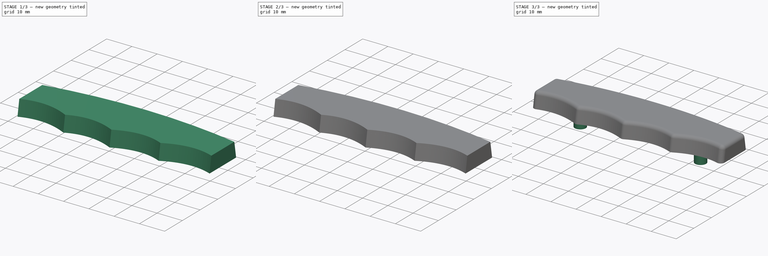
[diagram: build sequence overview — one tinted view per stage of 3, left to right]
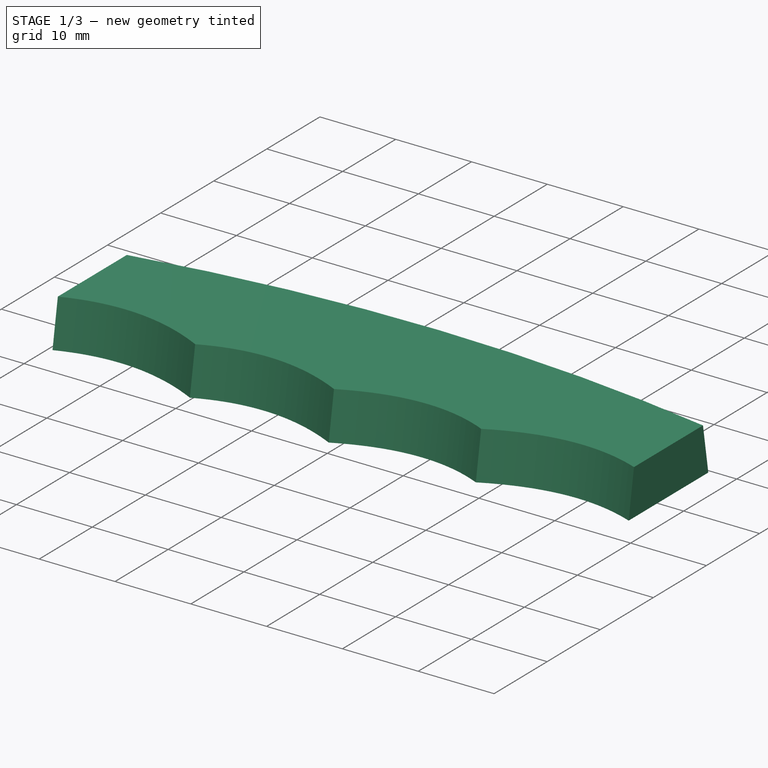
[diagram: stage 1 of 3 — iso view after this stage's code; geometry added in this stage tinted green]
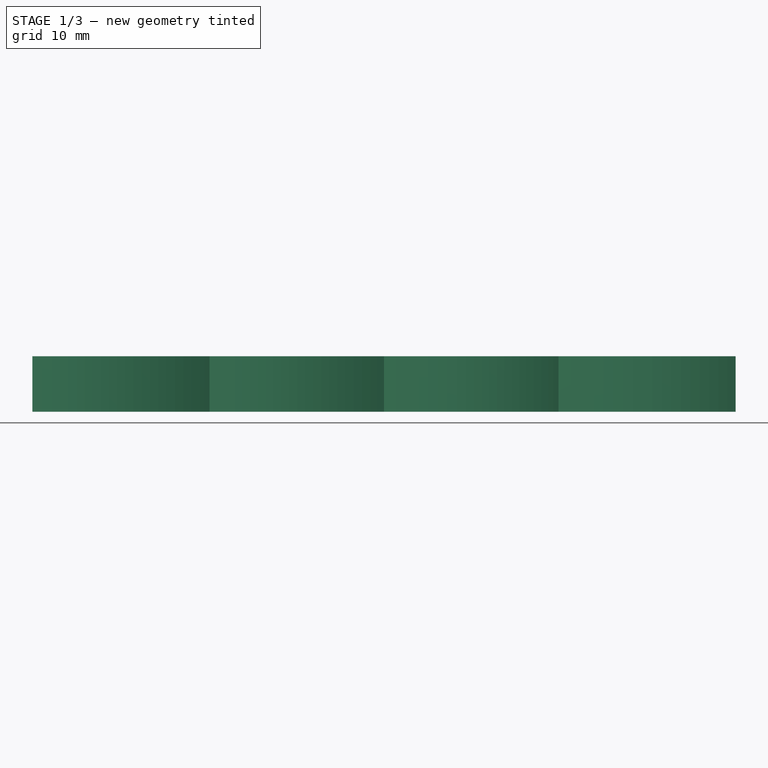
[diagram: stage 1 of 3 — front view after this stage's code; geometry added in this stage tinted green]
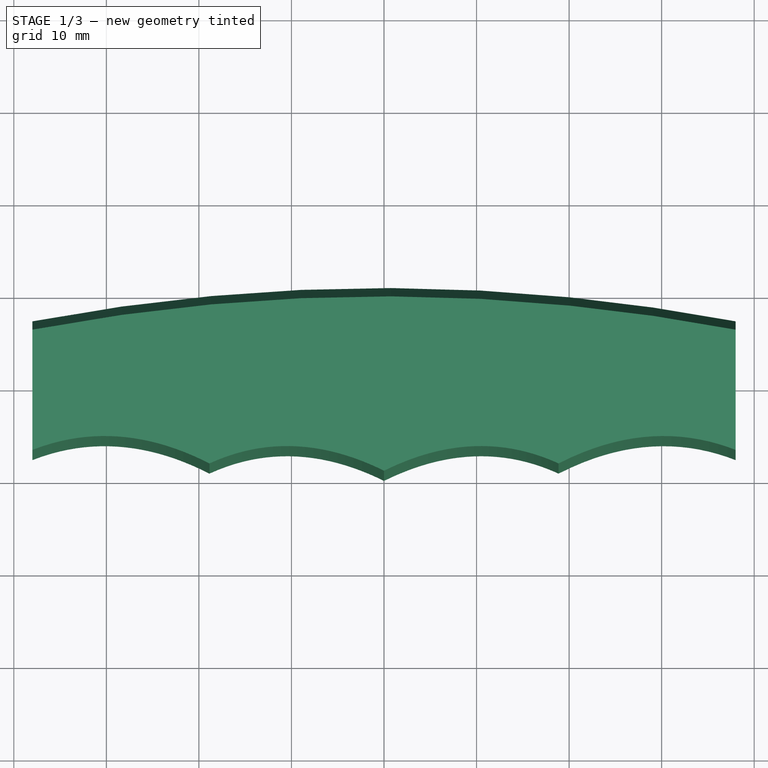
[diagram: stage 1 of 3 — top view after this stage's code; geometry added in this stage tinted green]
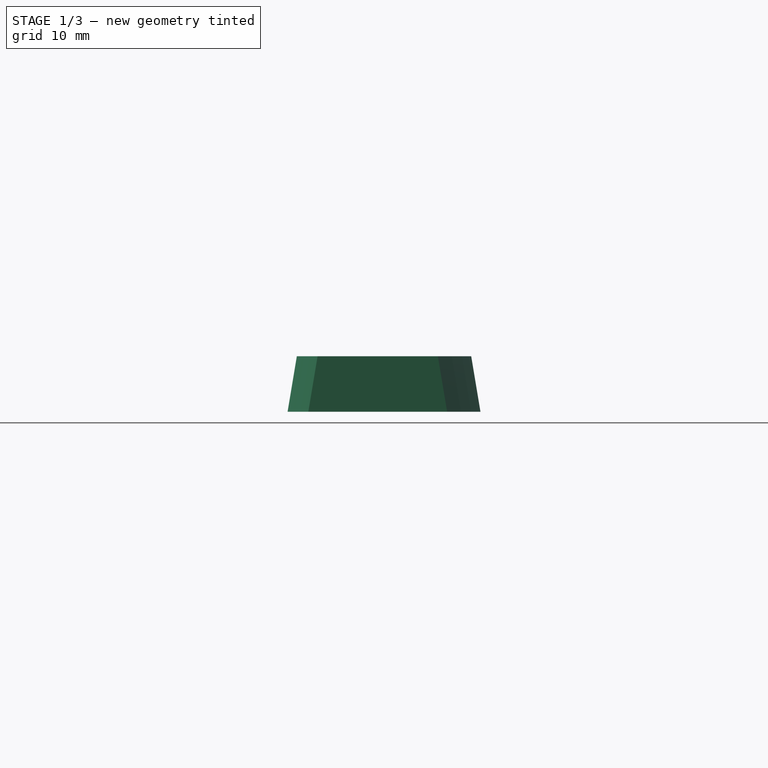
[diagram: stage 1 of 3 — right view after this stage's code; geometry added in this stage tinted green]
FCSTD DOCUMENT  (FreeCAD 1.1R)
Label: handle
License: All rights reserved
LicenseURL: https://en.wikipedia.org/wiki/All_rights_reserved
objects: Sketcher::SketchObject×6, App::Point×2, PartDesign::AdditiveLoft×2, PartDesign::Fillet×2, PartDesign::Body×2, Image::ImagePlane×1, PartDesign::Pocket×1, PartDesign::Pad×1
note: 32 computed .brp shape members not serialized (recipe doc carries the construction recipe); baked Part::Feature solids carry a one-line shape summary decoded from their .brp

FEATURE [Image::ImagePlane] _2025_10_30T14_15_14_075337338_01_00  label="2025-10-30T14:15:14,075337338+01:00"
  Placement = pos=(1.61,-21.71,0) rot=(0,0,1;0rad)
  XSize = 94.4865
  YSize = 80.1104
FEATURE [App::Point] Origin001
  Role = Origin
FEATURE [Sketcher::SketchObject] Sketch
  ArcFitTolerance = 1e-06
  AttachmentSupport = -> [Origin]
  ExternalTypes = [0]
  FullyConstrained = false
  MakeInternals = false
  MapMode = 5
  sketch-geometry (34):
    g0: LineSegment StartX=-38 StartY=7.5 StartZ=0 EndX=-38 EndY=-7.5 EndZ=0
    g1: LineSegment [constr] StartX=-38 StartY=-7.5 StartZ=0 EndX=38 EndY=-7.5 EndZ=0
    g2: LineSegment StartX=38 StartY=-7.5 StartZ=0 EndX=38 EndY=7.5 EndZ=0
    g3: LineSegment [constr] StartX=38 StartY=7.5 StartZ=0 EndX=-38 EndY=7.5 EndZ=0
    g4: Circle [constr] CenterX=-38 CenterY=7.5 CenterZ=0 NormalX=0 NormalY=0 NormalZ=1 AngleXU=0 Radius=1
    g5: Circle [constr] CenterX=0 CenterY=14.7 CenterZ=0 NormalX=0 NormalY=0 NormalZ=1 AngleXU=0 Radius=1
    g6: Circle [constr] CenterX=38 CenterY=7.5 CenterZ=0 NormalX=0 NormalY=0 NormalZ=1 AngleXU=0 Radius=1
    g7: BSplineCurve PolesCount=3 KnotsCount=2 Degree=2 IsPeriodic=0
    g8: GeomPoint [constr] X=-38 Y=7.5 Z=0
    g9: GeomPoint [constr] X=38 Y=7.5 Z=0
    g10: Circle [constr] CenterX=-38 CenterY=-7.5 CenterZ=0 NormalX=0 NormalY=0 NormalZ=1 AngleXU=0 Radius=1
    g11: Circle [constr] CenterX=-28.7713 CenterY=-3.886 CenterZ=0 NormalX=0 NormalY=0 NormalZ=1 AngleXU=0 Radius=1
    g12: Circle [constr] CenterX=-18.8619 CenterY=-8.959 CenterZ=0 NormalX=0 NormalY=0 NormalZ=1 AngleXU=0 Radius=1
    g13: BSplineCurve PolesCount=3 KnotsCount=2 Degree=2 IsPeriodic=0
    g14: GeomPoint [constr] X=-38 Y=-7.5 Z=0
    g15: GeomPoint [constr] X=-18.8619 Y=-8.959 Z=0
    g16: Circle [constr] CenterX=-18.8619 CenterY=-8.959 CenterZ=0 NormalX=0 NormalY=0 NormalZ=1 AngleXU=0 Radius=1
    g17: Circle [constr] CenterX=-9.89131 CenterY=-4.843 CenterZ=0 NormalX=0 NormalY=0 NormalZ=1 AngleXU=0 Radius=1
    g18: Circle [constr] CenterX=0 CenterY=-9.744 CenterZ=0 NormalX=0 NormalY=0 NormalZ=1 AngleXU=0 Radius=1
    g19: BSplineCurve PolesCount=3 KnotsCount=2 Degree=2 IsPeriodic=0
    g20: GeomPoint [constr] X=-18.8619 Y=-8.959 Z=0
    g21: GeomPoint [constr] X=0 Y=-9.744 Z=0
    g22: Circle [constr] CenterX=0 CenterY=-9.744 CenterZ=0 NormalX=0 NormalY=0 NormalZ=1 AngleXU=0 Radius=1
    g23: Circle [constr] CenterX=9.89131 CenterY=-4.843 CenterZ=0 NormalX=0 NormalY=0 NormalZ=1 AngleXU=0 Radius=1
    g24: Circle [constr] CenterX=18.8619 CenterY=-8.959 CenterZ=0 NormalX=0 NormalY=0 NormalZ=1 AngleXU=0 Radius=1
    g25: BSplineCurve PolesCount=3 KnotsCount=2 Degree=2 IsPeriodic=0
    g26: GeomPoint [constr] X=0 Y=-9.744 Z=0
    g27: GeomPoint [constr] X=18.8619 Y=-8.959 Z=0
    g28: Circle [constr] CenterX=18.8619 CenterY=-8.959 CenterZ=0 NormalX=0 NormalY=0 NormalZ=1 AngleXU=0 Radius=1
    g29: Circle [constr] CenterX=28.7713 CenterY=-3.886 CenterZ=0 NormalX=0 NormalY=0 NormalZ=1 AngleXU=0 Radius=1
    g30: Circle [constr] CenterX=38 CenterY=-7.5 CenterZ=0 NormalX=0 NormalY=0 NormalZ=1 AngleXU=0 Radius=1
    g31: BSplineCurve PolesCount=3 KnotsCount=2 Degree=2 IsPeriodic=0
    g32: GeomPoint [constr] X=18.8619 Y=-8.959 Z=0
    g33: GeomPoint [constr] X=38 Y=-7.5 Z=0
  constraints (67):
    c: Coincident(g0,g1)
    c: Coincident(g1,g2)
    c: Coincident(g2,g3)
    c: Coincident(g3,g0)
    c: Vertical(g2)
    c: Horizontal(g3)
    c: Distance(g2,g2) = 15
    c: DistanceX(g3,g3) = 76
    c: Symmetric(g1,g0,g-2)
    c: Symmetric(g0,g0,g-1)
    c: Weight(g4) = 1
    c: Equal(g4,g5)
    c: Equal(g4,g6)
    c: InternalAlignment(g4,g7)
    c: InternalAlignment(g5,g7)
    c: InternalAlignment(g6,g7)
    c: InternalAlignment(g8,g7)
    c: InternalAlignment(g9,g7)
    c: Coincident(g4,g0)
    c: Coincident(g6,g2)
    c: Distance(g5,g3) = 7.2
    c: PointOnObject(g5,g-2)
    c: Weight(g10) = 1
    c: Equal(g10,g11)
    c: Equal(g10,g12)
    c: InternalAlignment(g10,g13)
    c: InternalAlignment(g11,g13)
    c: InternalAlignment(g12,g13)
    c: InternalAlignment(g14,g13)
    c: InternalAlignment(g15,g13)
    c: Coincident(g10,g0)
    c: Weight(g16) = 1
    c: Equal(g16,g17)
    c: Equal(g16,g18)
    c: InternalAlignment(g16,g19)
    c: InternalAlignment(g17,g19)
    c: InternalAlignment(g18,g19)
    c: InternalAlignment(g20,g19)
    c: InternalAlignment(g21,g19)
    c: Coincident(g16,g13)
    c: PointOnObject(g18,g-2)
    c: Weight(g22) = 1
    c: Equal(g22,g23)
    c: Equal(g22,g24)
    c: InternalAlignment(g22,g25)
    c: InternalAlignment(g23,g25)
    c: InternalAlignment(g24,g25)
    c: InternalAlignment(g26,g25)
    c: InternalAlignment(g27,g25)
    c: Coincident(g22,g19)
    c: Weight(g28) = 1
    c: Equal(g28,g29)
    c: Equal(g28,g30)
    c: InternalAlignment(g28,g31)
    c: InternalAlignment(g29,g31)
    c: InternalAlignment(g30,g31)
    c: InternalAlignment(g32,g31)
    c: InternalAlignment(g33,g31)
    c: Coincident(g28,g25)
    c: Coincident(g30,g1)
    c: Symmetric(g29,g11,g-2)
    c: Symmetric(g23,g17,g-2)
    c: Symmetric(g19,g31,g-2)
    c: Distance(g11,g1) = 3.614
    c: Distance(g19,g1) = 1.459
    c: Distance(g17,g1) = 2.657
    c: Distance(g25,g1) = 2.244
FEATURE [Sketcher::SketchObject] Sketch001
  ArcFitTolerance = 1e-06
  AttachmentOffset = pos=(0,0,6) rot=(0,0,1;0rad)
  AttachmentSupport = -> [Origin]
  ExternalTypes = [0]
  FullyConstrained = false
  MakeInternals = false
  MapMode = 5
  Placement = pos=(0,0,6) rot=(0,0,1;0rad)
  sketch-geometry (34):
    g0: LineSegment StartX=-38 StartY=6.5 StartZ=0 EndX=-38 EndY=-6.5 EndZ=0
    g1: LineSegment [constr] StartX=-38 StartY=-6.5 StartZ=0 EndX=38 EndY=-6.5 EndZ=0
    g2: LineSegment StartX=38 StartY=-6.5 StartZ=0 EndX=38 EndY=6.5 EndZ=0
    g3: LineSegment [constr] StartX=38 StartY=6.5 StartZ=0 EndX=-38 EndY=6.5 EndZ=0
    g4: Circle [constr] CenterX=-38 CenterY=6.5 CenterZ=0 NormalX=0 NormalY=0 NormalZ=1 AngleXU=0 Radius=1
    g5: Circle [constr] CenterX=0 CenterY=13.7 CenterZ=0 NormalX=0 NormalY=0 NormalZ=1 AngleXU=0 Radius=1
    g6: Circle [constr] CenterX=38 CenterY=6.5 CenterZ=0 NormalX=0 NormalY=0 NormalZ=1 AngleXU=0 Radius=1
    g7: BSplineCurve PolesCount=3 KnotsCount=2 Degree=2 IsPeriodic=0
    g8: GeomPoint [constr] X=-38 Y=6.5 Z=0
    g9: GeomPoint [constr] X=38 Y=6.5 Z=0
    g10: Circle [constr] CenterX=-38 CenterY=-6.5 CenterZ=0 NormalX=0 NormalY=0 NormalZ=1 AngleXU=0 Radius=1
    g11: Circle [constr] CenterX=-28.7714 CenterY=-2.886 CenterZ=0 NormalX=0 NormalY=0 NormalZ=1 AngleXU=0 Radius=1
    g12: Circle [constr] CenterX=-18.8619 CenterY=-7.959 CenterZ=0 NormalX=0 NormalY=0 NormalZ=1 AngleXU=0 Radius=1
    g13: BSplineCurve PolesCount=3 KnotsCount=2 Degree=2 IsPeriodic=0
    g14: GeomPoint [constr] X=-38 Y=-6.5 Z=0
    g15: GeomPoint [constr] X=-18.8619 Y=-7.959 Z=0
    g16: Circle [constr] CenterX=-18.8619 CenterY=-7.959 CenterZ=0 NormalX=0 NormalY=0 NormalZ=1 AngleXU=0 Radius=1
    g17: Circle [constr] CenterX=-9.89162 CenterY=-3.843 CenterZ=0 NormalX=0 NormalY=0 NormalZ=1 AngleXU=0 Radius=1
    g18: Circle [constr] CenterX=0 CenterY=-8.744 CenterZ=0 NormalX=0 NormalY=0 NormalZ=1 AngleXU=0 Radius=1
    g19: BSplineCurve PolesCount=3 KnotsCount=2 Degree=2 IsPeriodic=0
    g20: GeomPoint [constr] X=-18.8619 Y=-7.959 Z=0
    g21: GeomPoint [constr] X=0 Y=-8.744 Z=0
    g22: Circle [constr] CenterX=0 CenterY=-8.744 CenterZ=0 NormalX=0 NormalY=0 NormalZ=1 AngleXU=0 Radius=1
    g23: Circle [constr] CenterX=9.89162 CenterY=-3.843 CenterZ=0 NormalX=0 NormalY=0 NormalZ=1 AngleXU=0 Radius=1
    g24: Circle [constr] CenterX=18.8619 CenterY=-7.959 CenterZ=0 NormalX=0 NormalY=0 NormalZ=1 AngleXU=0 Radius=1
    g25: BSplineCurve PolesCount=3 KnotsCount=2 Degree=2 IsPeriodic=0
    g26: GeomPoint [constr] X=0 Y=-8.744 Z=0
    g27: GeomPoint [constr] X=18.8619 Y=-7.959 Z=0
    g28: Circle [constr] CenterX=18.8619 CenterY=-7.959 CenterZ=0 NormalX=0 NormalY=0 NormalZ=1 AngleXU=0 Radius=1
    g29: Circle [constr] CenterX=28.7714 CenterY=-2.886 CenterZ=0 NormalX=0 NormalY=0 NormalZ=1 AngleXU=0 Radius=1
    g30: Circle [constr] CenterX=38 CenterY=-6.5 CenterZ=0 NormalX=0 NormalY=0 NormalZ=1 AngleXU=0 Radius=1
    g31: BSplineCurve PolesCount=3 KnotsCount=2 Degree=2 IsPeriodic=0
    g32: GeomPoint [constr] X=18.8619 Y=-7.959 Z=0
    g33: GeomPoint [constr] X=38 Y=-6.5 Z=0
  constraints (67):
    c: Coincident(g0,g1)
    c: Coincident(g1,g2)
    c: Coincident(g2,g3)
    c: Coincident(g3,g0)
    c: Vertical(g2)
    c: Horizontal(g3)
    c: Distance(g2,g2) = 13
    c: DistanceX(g3,g3) = 76
    c: Symmetric(g1,g0,g-2)
    c: Symmetric(g0,g0,g-1)
    c: Weight(g4) = 1
    c: Equal(g4,g5)
    c: Equal(g4,g6)
    c: InternalAlignment(g4,g7)
    c: InternalAlignment(g5,g7)
    c: InternalAlignment(g6,g7)
    c: InternalAlignment(g8,g7)
    c: InternalAlignment(g9,g7)
    c: Coincident(g4,g0)
    c: Coincident(g6,g2)
    c: Distance(g5,g3) = 7.2
    c: PointOnObject(g5,g-2)
    c: Weight(g10) = 1
    c: Equal(g10,g11)
    c: Equal(g10,g12)
    c: InternalAlignment(g10,g13)
    c: InternalAlignment(g11,g13)
    c: InternalAlignment(g12,g13)
    c: InternalAlignment(g14,g13)
    c: InternalAlignment(g15,g13)
    c: Coincident(g10,g0)
    c: Weight(g16) = 1
    c: Equal(g16,g17)
    c: Equal(g16,g18)
    c: InternalAlignment(g16,g19)
    c: InternalAlignment(g17,g19)
    c: InternalAlignment(g18,g19)
    c: InternalAlignment(g20,g19)
    c: InternalAlignment(g21,g19)
    c: Coincident(g16,g13)
    c: PointOnObject(g18,g-2)
    c: Weight(g22) = 1
    c: Equal(g22,g23)
    c: Equal(g22,g24)
    c: InternalAlignment(g22,g25)
    c: InternalAlignment(g23,g25)
    c: InternalAlignment(g24,g25)
    c: InternalAlignment(g26,g25)
    c: InternalAlignment(g27,g25)
    c: Coincident(g22,g19)
    c: Weight(g28) = 1
    c: Equal(g28,g29)
    c: Equal(g28,g30)
    c: InternalAlignment(g28,g31)
    c: InternalAlignment(g29,g31)
    c: InternalAlignment(g30,g31)
    c: InternalAlignment(g32,g31)
    c: InternalAlignment(g33,g31)
    c: Coincident(g28,g25)
    c: Coincident(g30,g1)
    c: Symmetric(g29,g11,g-2)
    c: Symmetric(g23,g17,g-2)
    c: Symmetric(g19,g31,g-2)
    c: Distance(g11,g1) = 3.614
    c: Distance(g19,g1) = 1.459
    c: Distance(g17,g1) = 2.657
    c: Distance(g25,g1) = 2.244
FEATURE [PartDesign::AdditiveLoft] AdditiveLoft
  Closed = false
  Profile = -> Sketch
  Refine = true
  Ruled = false
  Sections = -> [Sketch001]
  Suppressed = false
FEATURE [Sketcher::SketchObject] Sketch002
  ArcFitTolerance = 1e-06
  AttachmentSupport = -> [Origin]
  ExternalTypes = [0]
  FullyConstrained = true
  MakeInternals = false
  MapMode = 5
  sketch-geometry (2):
    g0: Circle CenterX=-24 CenterY=1 CenterZ=0 NormalX=0 NormalY=0 NormalZ=1 AngleXU=0 Radius=2.25
    g1: Circle CenterX=24 CenterY=1 CenterZ=0 NormalX=0 NormalY=0 NormalZ=1 AngleXU=0 Radius=2.25
  constraints (5):
    c: Equal(g1,g0)
    c: Diameter(g0) = 4.5
    c: Symmetric(g0,g1,g-2)
    c: Distance(g0,g-1) = 1
    c: Distance(g0,g-2) = 24
FEATURE [PartDesign::Pocket] Pocket
  BaseFeature = -> AdditiveLoft
  Direction = (0,0,-1)
  Length = 4
  Length2 = 5
  Profile = -> Sketch002
  ReferenceAxis = -> Sketch002 [N_Axis]
  Refine = true
  Reversed = true
  SideType = 0
  Suppressed = false
  Type = 0
  Type2 = 0
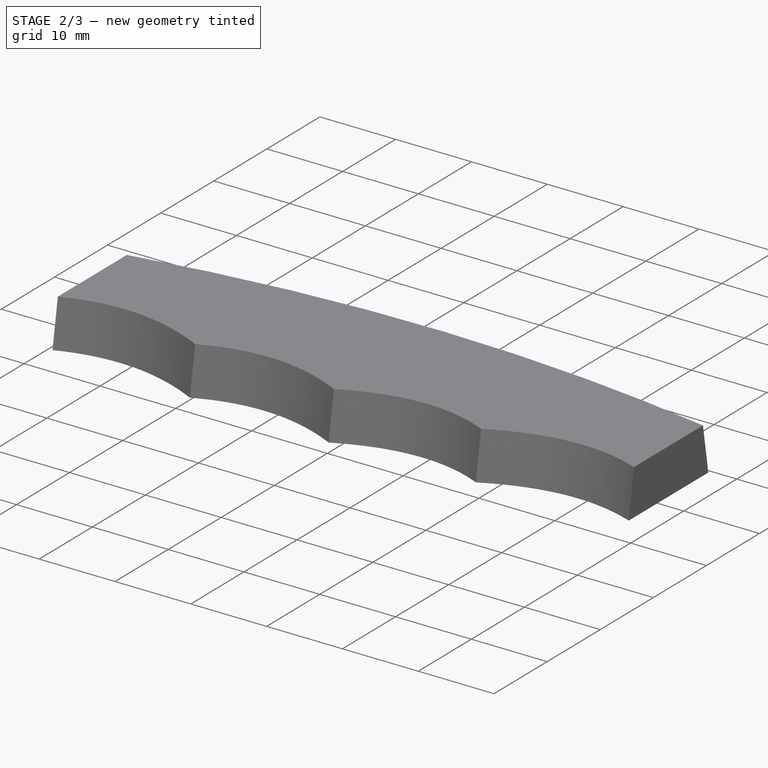
[diagram: stage 2 of 3 — iso view after this stage's code; geometry added in this stage tinted green]
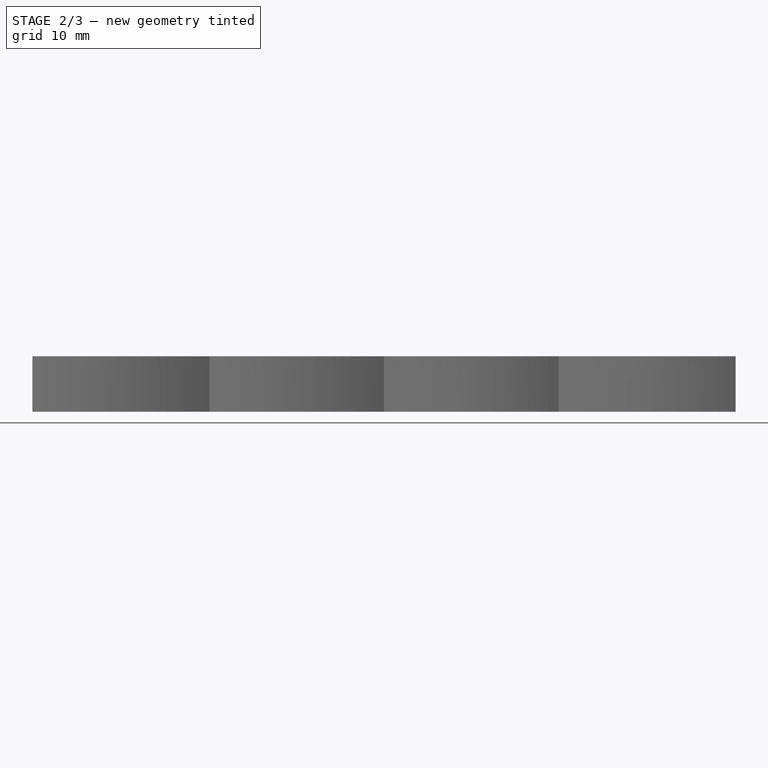
[diagram: stage 2 of 3 — front view after this stage's code; geometry added in this stage tinted green]
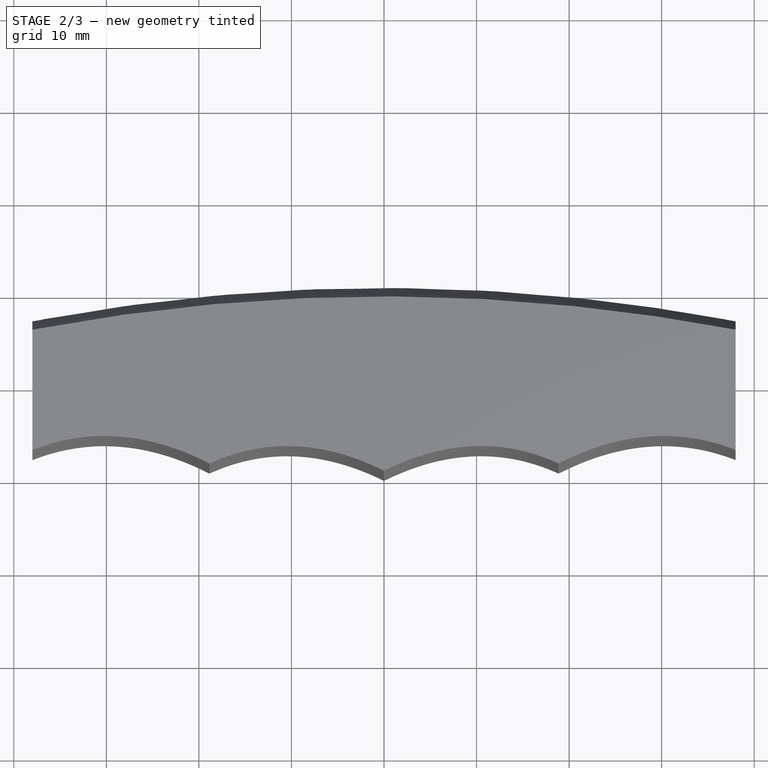
[diagram: stage 2 of 3 — top view after this stage's code; geometry added in this stage tinted green]
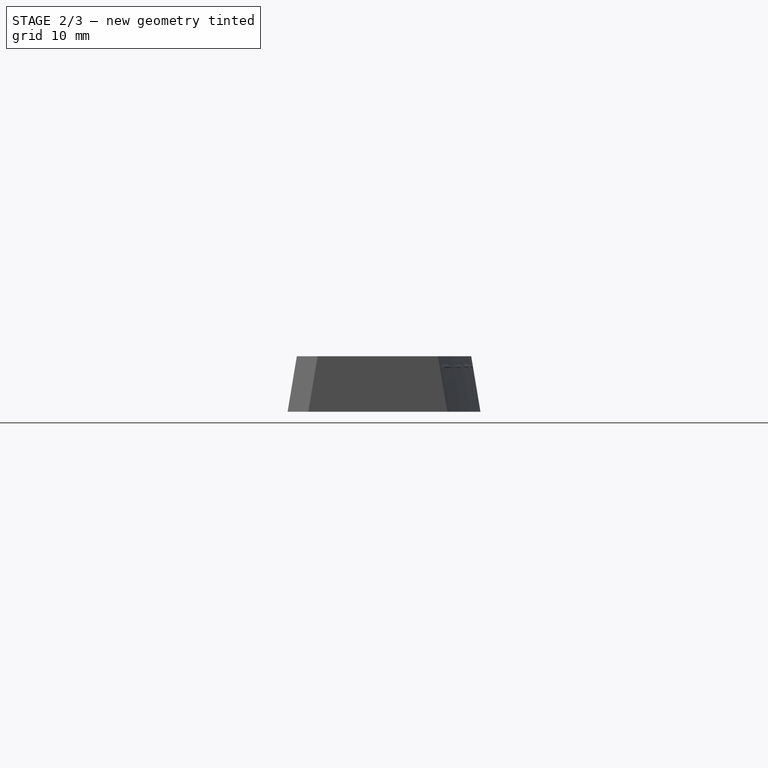
[diagram: stage 2 of 3 — right view after this stage's code; geometry added in this stage tinted green]
FEATURE [Sketcher::SketchObject] Sketch003
  ArcFitTolerance = 1e-06
  AttachmentSupport = -> [Origin]
  ExternalTypes = [0]
  FullyConstrained = false
  MakeInternals = false
  MapMode = 5
  sketch-geometry (34):
    g0: LineSegment StartX=-38 StartY=7.5 StartZ=0 EndX=-38 EndY=-7.5 EndZ=0
    g1: LineSegment [constr] StartX=-38 StartY=-7.5 StartZ=0 EndX=38 EndY=-7.5 EndZ=0
    g2: LineSegment StartX=38 StartY=-7.5 StartZ=0 EndX=38 EndY=7.5 EndZ=0
    g3: LineSegment [constr] StartX=38 StartY=7.5 StartZ=0 EndX=-38 EndY=7.5 EndZ=0
    g4: Circle [constr] CenterX=-38 CenterY=7.5 CenterZ=0 NormalX=0 NormalY=0 NormalZ=1 AngleXU=0 Radius=1
    g5: Circle [constr] CenterX=0 CenterY=14.7 CenterZ=0 NormalX=0 NormalY=0 NormalZ=1 AngleXU=0 Radius=1
    g6: Circle [constr] CenterX=38 CenterY=7.5 CenterZ=0 NormalX=0 NormalY=0 NormalZ=1 AngleXU=0 Radius=1
    g7: BSplineCurve PolesCount=3 KnotsCount=2 Degree=2 IsPeriodic=0
    g8: GeomPoint [constr] X=-38 Y=7.5 Z=0
    g9: GeomPoint [constr] X=38 Y=7.5 Z=0
    g10: Circle [constr] CenterX=-38 CenterY=-7.5 CenterZ=0 NormalX=0 NormalY=0 NormalZ=1 AngleXU=0 Radius=1
    g11: Circle [constr] CenterX=-28.7713 CenterY=-3.886 CenterZ=0 NormalX=0 NormalY=0 NormalZ=1 AngleXU=0 Radius=1
    g12: Circle [constr] CenterX=-18.8619 CenterY=-8.959 CenterZ=0 NormalX=0 NormalY=0 NormalZ=1 AngleXU=0 Radius=1
    g13: BSplineCurve PolesCount=3 KnotsCount=2 Degree=2 IsPeriodic=0
    g14: GeomPoint [constr] X=-38 Y=-7.5 Z=0
    g15: GeomPoint [constr] X=-18.8619 Y=-8.959 Z=0
    g16: Circle [constr] CenterX=-18.8619 CenterY=-8.959 CenterZ=0 NormalX=0 NormalY=0 NormalZ=1 AngleXU=0 Radius=1
    g17: Circle [constr] CenterX=-9.89131 CenterY=-4.843 CenterZ=0 NormalX=0 NormalY=0 NormalZ=1 AngleXU=0 Radius=1
    g18: Circle [constr] CenterX=0 CenterY=-9.744 CenterZ=0 NormalX=0 NormalY=0 NormalZ=1 AngleXU=0 Radius=1
    g19: BSplineCurve PolesCount=3 KnotsCount=2 Degree=2 IsPeriodic=0
    g20: GeomPoint [constr] X=-18.8619 Y=-8.959 Z=0
    g21: GeomPoint [constr] X=0 Y=-9.744 Z=0
    g22: Circle [constr] CenterX=0 CenterY=-9.744 CenterZ=0 NormalX=0 NormalY=0 NormalZ=1 AngleXU=0 Radius=1
    g23: Circle [constr] CenterX=9.89131 CenterY=-4.843 CenterZ=0 NormalX=0 NormalY=0 NormalZ=1 AngleXU=0 Radius=1
    g24: Circle [constr] CenterX=18.8619 CenterY=-8.959 CenterZ=0 NormalX=0 NormalY=0 NormalZ=1 AngleXU=0 Radius=1
    g25: BSplineCurve PolesCount=3 KnotsCount=2 Degree=2 IsPeriodic=0
    g26: GeomPoint [constr] X=0 Y=-9.744 Z=0
    g27: GeomPoint [constr] X=18.8619 Y=-8.959 Z=0
    g28: Circle [constr] CenterX=18.8619 CenterY=-8.959 CenterZ=0 NormalX=0 NormalY=0 NormalZ=1 AngleXU=0 Radius=1
    g29: Circle [constr] CenterX=28.7713 CenterY=-3.886 CenterZ=0 NormalX=0 NormalY=0 NormalZ=1 AngleXU=0 Radius=1
    g30: Circle [constr] CenterX=38 CenterY=-7.5 CenterZ=0 NormalX=0 NormalY=0 NormalZ=1 AngleXU=0 Radius=1
    g31: BSplineCurve PolesCount=3 KnotsCount=2 Degree=2 IsPeriodic=0
    g32: GeomPoint [constr] X=18.8619 Y=-8.959 Z=0
    g33: GeomPoint [constr] X=38 Y=-7.5 Z=0
  constraints (67):
    c: Coincident(g0,g1)
    c: Coincident(g1,g2)
    c: Coincident(g2,g3)
    c: Coincident(g3,g0)
    c: Vertical(g2)
    c: Horizontal(g3)
    c: Distance(g2,g2) = 15
    c: DistanceX(g3,g3) = 76
    c: Symmetric(g1,g0,g-2)
    c: Symmetric(g0,g0,g-1)
    c: Weight(g4) = 1
    c: Equal(g4,g5)
    c: Equal(g4,g6)
    c: InternalAlignment(g4,g7)
    c: InternalAlignment(g5,g7)
    c: InternalAlignment(g6,g7)
    c: InternalAlignment(g8,g7)
    c: InternalAlignment(g9,g7)
    c: Coincident(g4,g0)
    c: Coincident(g6,g2)
    c: Distance(g5,g3) = 7.2
    c: PointOnObject(g5,g-2)
    c: Weight(g10) = 1
    c: Equal(g10,g11)
    c: Equal(g10,g12)
    c: InternalAlignment(g10,g13)
    c: InternalAlignment(g11,g13)
    c: InternalAlignment(g12,g13)
    c: InternalAlignment(g14,g13)
    c: InternalAlignment(g15,g13)
    c: Coincident(g10,g0)
    c: Weight(g16) = 1
    c: Equal(g16,g17)
    c: Equal(g16,g18)
    c: InternalAlignment(g16,g19)
    c: InternalAlignment(g17,g19)
    c: InternalAlignment(g18,g19)
    c: InternalAlignment(g20,g19)
    c: InternalAlignment(g21,g19)
    c: Coincident(g16,g13)
    c: PointOnObject(g18,g-2)
    c: Weight(g22) = 1
    c: Equal(g22,g23)
    c: Equal(g22,g24)
    c: InternalAlignment(g22,g25)
    c: InternalAlignment(g23,g25)
    c: InternalAlignment(g24,g25)
    c: InternalAlignment(g26,g25)
    c: InternalAlignment(g27,g25)
    c: Coincident(g22,g19)
    c: Weight(g28) = 1
    c: Equal(g28,g29)
    c: Equal(g28,g30)
    c: InternalAlignment(g28,g31)
    c: InternalAlignment(g29,g31)
    c: InternalAlignment(g30,g31)
    c: InternalAlignment(g32,g31)
    c: InternalAlignment(g33,g31)
    c: Coincident(g28,g25)
    c: Coincident(g30,g1)
    c: Symmetric(g29,g11,g-2)
    c: Symmetric(g23,g17,g-2)
    c: Symmetric(g19,g31,g-2)
    c: Distance(g11,g1) = 3.614
    c: Distance(g19,g1) = 1.459
    c: Distance(g17,g1) = 2.657
    c: Distance(g25,g1) = 2.244
FEATURE [Sketcher::SketchObject] Sketch004
  ArcFitTolerance = 1e-06
  AttachmentOffset = pos=(0,0,6) rot=(0,0,1;0rad)
  AttachmentSupport = -> [Origin]
  ExternalTypes = [0]
  FullyConstrained = false
  MakeInternals = false
  MapMode = 5
  Placement = pos=(0,0,6) rot=(0,0,1;0rad)
  sketch-geometry (34):
    g0: LineSegment StartX=-38 StartY=6.5 StartZ=0 EndX=-38 EndY=-6.5 EndZ=0
    g1: LineSegment [constr] StartX=-38 StartY=-6.5 StartZ=0 EndX=38 EndY=-6.5 EndZ=0
    g2: LineSegment StartX=38 StartY=-6.5 StartZ=0 EndX=38 EndY=6.5 EndZ=0
    g3: LineSegment [constr] StartX=38 StartY=6.5 StartZ=0 EndX=-38 EndY=6.5 EndZ=0
    g4: Circle [constr] CenterX=-38 CenterY=6.5 CenterZ=0 NormalX=0 NormalY=0 NormalZ=1 AngleXU=0 Radius=1
    g5: Circle [constr] CenterX=0 CenterY=13.7 CenterZ=0 NormalX=0 NormalY=0 NormalZ=1 AngleXU=0 Radius=1
    g6: Circle [constr] CenterX=38 CenterY=6.5 CenterZ=0 NormalX=0 NormalY=0 NormalZ=1 AngleXU=0 Radius=1
    g7: BSplineCurve PolesCount=3 KnotsCount=2 Degree=2 IsPeriodic=0
    g8: GeomPoint [constr] X=-38 Y=6.5 Z=0
    g9: GeomPoint [constr] X=38 Y=6.5 Z=0
    g10: Circle [constr] CenterX=-38 CenterY=-6.5 CenterZ=0 NormalX=0 NormalY=0 NormalZ=1 AngleXU=0 Radius=1
    g11: Circle [constr] CenterX=-28.7714 CenterY=-2.886 CenterZ=0 NormalX=0 NormalY=0 NormalZ=1 AngleXU=0 Radius=1
    g12: Circle [constr] CenterX=-18.8619 CenterY=-7.959 CenterZ=0 NormalX=0 NormalY=0 NormalZ=1 AngleXU=0 Radius=1
    g13: BSplineCurve PolesCount=3 KnotsCount=2 Degree=2 IsPeriodic=0
    g14: GeomPoint [constr] X=-38 Y=-6.5 Z=0
    g15: GeomPoint [constr] X=-18.8619 Y=-7.959 Z=0
    g16: Circle [constr] CenterX=-18.8619 CenterY=-7.959 CenterZ=0 NormalX=0 NormalY=0 NormalZ=1 AngleXU=0 Radius=1
    g17: Circle [constr] CenterX=-9.89162 CenterY=-3.843 CenterZ=0 NormalX=0 NormalY=0 NormalZ=1 AngleXU=0 Radius=1
    g18: Circle [constr] CenterX=0 CenterY=-8.744 CenterZ=0 NormalX=0 NormalY=0 NormalZ=1 AngleXU=0 Radius=1
    g19: BSplineCurve PolesCount=3 KnotsCount=2 Degree=2 IsPeriodic=0
    g20: GeomPoint [constr] X=-18.8619 Y=-7.959 Z=0
    g21: GeomPoint [constr] X=0 Y=-8.744 Z=0
    g22: Circle [constr] CenterX=0 CenterY=-8.744 CenterZ=0 NormalX=0 NormalY=0 NormalZ=1 AngleXU=0 Radius=1
    g23: Circle [constr] CenterX=9.89162 CenterY=-3.843 CenterZ=0 NormalX=0 NormalY=0 NormalZ=1 AngleXU=0 Radius=1
    g24: Circle [constr] CenterX=18.8619 CenterY=-7.959 CenterZ=0 NormalX=0 NormalY=0 NormalZ=1 AngleXU=0 Radius=1
    g25: BSplineCurve PolesCount=3 KnotsCount=2 Degree=2 IsPeriodic=0
    g26: GeomPoint [constr] X=0 Y=-8.744 Z=0
    g27: GeomPoint [constr] X=18.8619 Y=-7.959 Z=0
    g28: Circle [constr] CenterX=18.8619 CenterY=-7.959 CenterZ=0 NormalX=0 NormalY=0 NormalZ=1 AngleXU=0 Radius=1
    g29: Circle [constr] CenterX=28.7714 CenterY=-2.886 CenterZ=0 NormalX=0 NormalY=0 NormalZ=1 AngleXU=0 Radius=1
    g30: Circle [constr] CenterX=38 CenterY=-6.5 CenterZ=0 NormalX=0 NormalY=0 NormalZ=1 AngleXU=0 Radius=1
    g31: BSplineCurve PolesCount=3 KnotsCount=2 Degree=2 IsPeriodic=0
    g32: GeomPoint [constr] X=18.8619 Y=-7.959 Z=0
    g33: GeomPoint [constr] X=38 Y=-6.5 Z=0
  constraints (67):
    c: Coincident(g0,g1)
    c: Coincident(g1,g2)
    c: Coincident(g2,g3)
    c: Coincident(g3,g0)
    c: Vertical(g2)
    c: Horizontal(g3)
    c: Distance(g2,g2) = 13
    c: DistanceX(g3,g3) = 76
    c: Symmetric(g1,g0,g-2)
    c: Symmetric(g0,g0,g-1)
    c: Weight(g4) = 1
    c: Equal(g4,g5)
    c: Equal(g4,g6)
    c: InternalAlignment(g4,g7)
    c: InternalAlignment(g5,g7)
    c: InternalAlignment(g6,g7)
    c: InternalAlignment(g8,g7)
    c: InternalAlignment(g9,g7)
    c: Coincident(g4,g0)
    c: Coincident(g6,g2)
    c: Distance(g5,g3) = 7.2
    c: PointOnObject(g5,g-2)
    c: Weight(g10) = 1
    c: Equal(g10,g11)
    c: Equal(g10,g12)
    c: InternalAlignment(g10,g13)
    c: InternalAlignment(g11,g13)
    c: InternalAlignment(g12,g13)
    c: InternalAlignment(g14,g13)
    c: InternalAlignment(g15,g13)
    c: Coincident(g10,g0)
    c: Weight(g16) = 1
    c: Equal(g16,g17)
    c: Equal(g16,g18)
    c: InternalAlignment(g16,g19)
    c: InternalAlignment(g17,g19)
    c: InternalAlignment(g18,g19)
    c: InternalAlignment(g20,g19)
    c: InternalAlignment(g21,g19)
    c: Coincident(g16,g13)
    c: PointOnObject(g18,g-2)
    c: Weight(g22) = 1
    c: Equal(g22,g23)
    c: Equal(g22,g24)
    c: InternalAlignment(g22,g25)
    c: InternalAlignment(g23,g25)
    c: InternalAlignment(g24,g25)
    c: InternalAlignment(g26,g25)
    c: InternalAlignment(g27,g25)
    c: Coincident(g22,g19)
    c: Weight(g28) = 1
    c: Equal(g28,g29)
    c: Equal(g28,g30)
    c: InternalAlignment(g28,g31)
    c: InternalAlignment(g29,g31)
    c: InternalAlignment(g30,g31)
    c: InternalAlignment(g32,g31)
    c: InternalAlignment(g33,g31)
    c: Coincident(g28,g25)
    c: Coincident(g30,g1)
    c: Symmetric(g29,g11,g-2)
    c: Symmetric(g23,g17,g-2)
    c: Symmetric(g19,g31,g-2)
    c: Distance(g11,g1) = 3.614
    c: Distance(g19,g1) = 1.459
    c: Distance(g17,g1) = 2.657
    c: Distance(g25,g1) = 2.244
FEATURE [PartDesign::AdditiveLoft] AdditiveLoft001
  Closed = false
  Profile = -> Sketch003
  Refine = true
  Ruled = false
  Sections = -> [Sketch004]
  Suppressed = false
FEATURE [PartDesign::Body] Body001  label="male"
  AllowCompound = false
  Group = -> [Sketch003,Sketch004,AdditiveLoft001,Sketch005,Pad,Fillet]
  Origin = -> Origin002
  Placement = pos=(2e-16,0,-2.04) rot=(0,1,0;3.14159rad)
  Tip = -> Fillet
FEATURE [PartDesign::Fillet] Fillet001
  Base = -> Pocket [Edge12,Edge13,Edge11,Edge10,Edge16,Edge20,Edge23,Edge21,Edge17,Edge14,Edge15,Edge19,Edge22,Edge18]
  BaseFeature = -> Pocket
  Radius = 1.5
  Refine = true
  SupportTransform = false
  Suppressed = false
  UseAllEdges = false
FEATURE [PartDesign::Body] Body  label="female"
  AllowCompound = false
  Group = -> [Sketch,Sketch001,AdditiveLoft,Sketch002,Pocket,Fillet001]
  Origin = -> Origin
  Tip = -> Fillet001
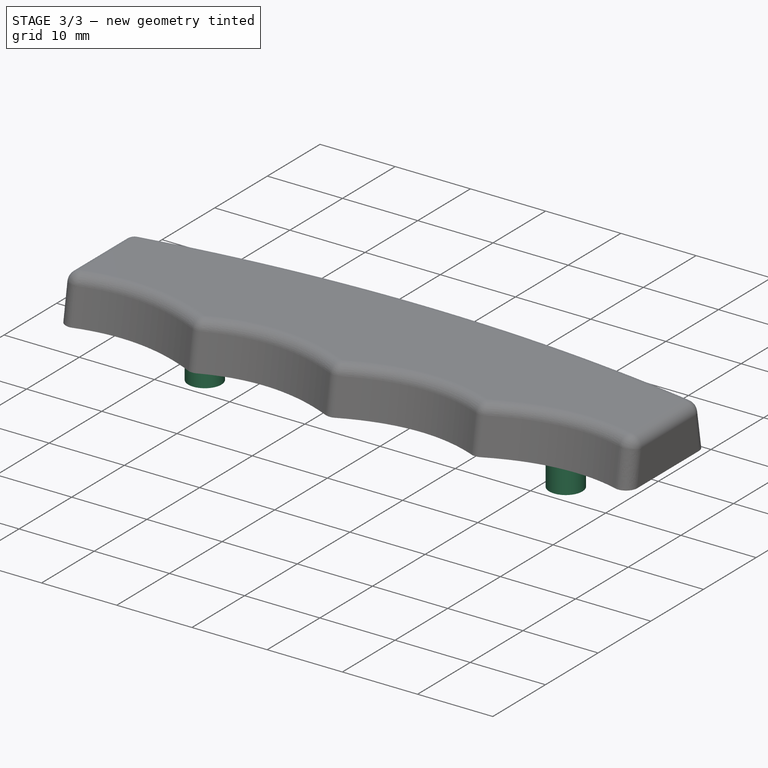
[diagram: stage 3 of 3 — iso view after this stage's code; geometry added in this stage tinted green]
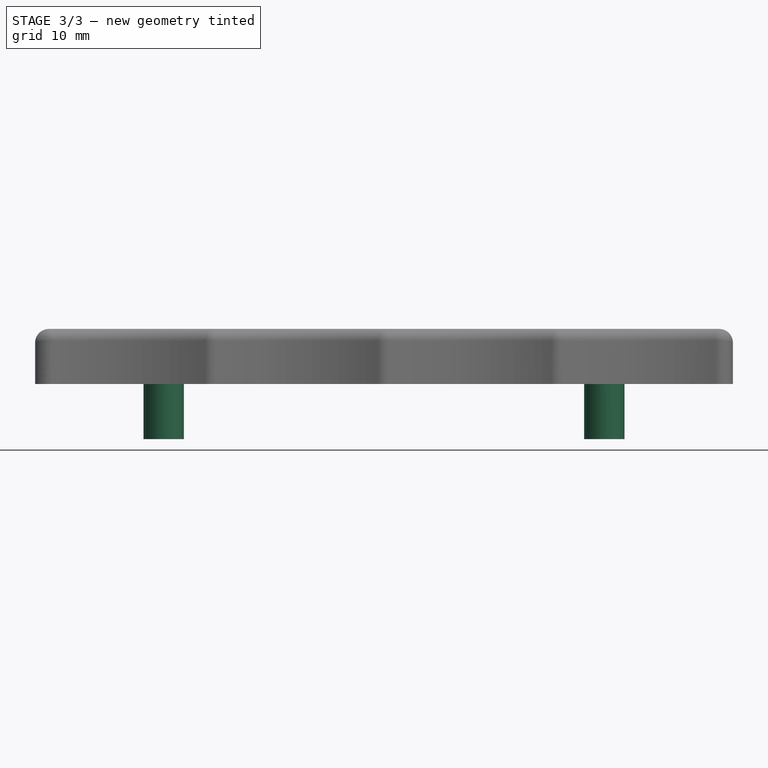
[diagram: stage 3 of 3 — front view after this stage's code; geometry added in this stage tinted green]
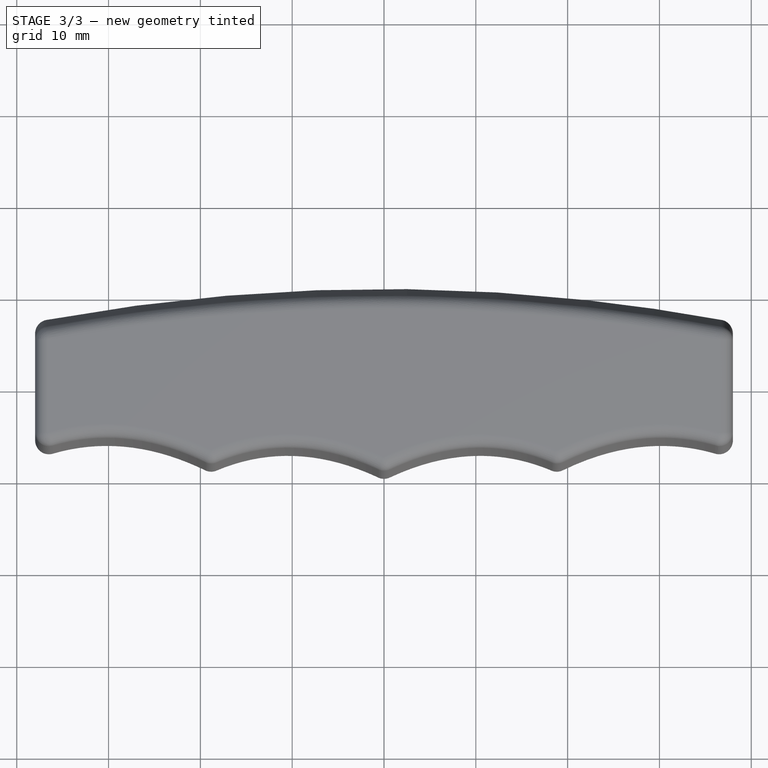
[diagram: stage 3 of 3 — top view after this stage's code; geometry added in this stage tinted green]
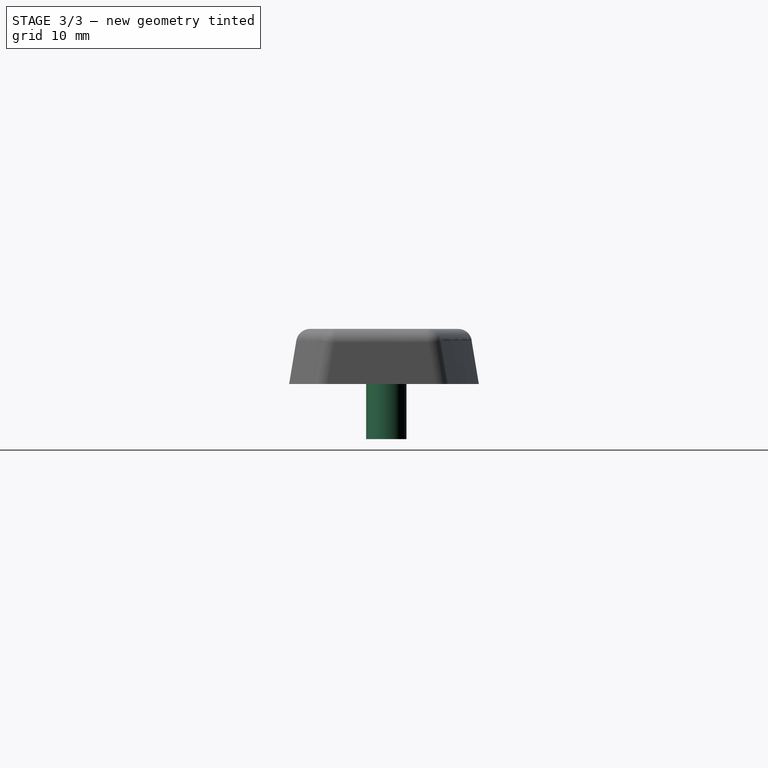
[diagram: stage 3 of 3 — right view after this stage's code; geometry added in this stage tinted green]
FEATURE [Sketcher::SketchObject] Sketch005
  ArcFitTolerance = 1e-06
  AttachmentSupport = -> [Origin]
  ExternalTypes = [0]
  FullyConstrained = true
  MakeInternals = false
  MapMode = 5
  sketch-geometry (2):
    g0: Circle CenterX=-24 CenterY=1 CenterZ=0 NormalX=0 NormalY=0 NormalZ=1 AngleXU=0 Radius=2.2
    g1: Circle CenterX=24 CenterY=1 CenterZ=0 NormalX=0 NormalY=0 NormalZ=1 AngleXU=0 Radius=2.2
  constraints (5):
    c: Equal(g1,g0)
    c: Diameter(g0) = 4.4
    c: Symmetric(g0,g1,g-2)
    c: Distance(g0,g-1) = 1
    c: Distance(g0,g-2) = 24
FEATURE [App::Point] Origin003
  Role = Origin
FEATURE [PartDesign::Pad] Pad
  BaseFeature = -> AdditiveLoft001
  Direction = (0,0,1)
  Length = 6
  Length2 = 10
  Profile = -> Sketch005
  ReferenceAxis = -> Sketch005 [N_Axis]
  Refine = true
  Reversed = true
  SideType = 0
  Suppressed = false
  Type = 0
  Type2 = 0
FEATURE [PartDesign::Fillet] Fillet
  Base = -> Pad [Edge21,Edge17,Edge13,Edge23,Edge20,Edge16,Edge11,Edge22,Edge18,Edge19,Edge15,Edge10,Edge14,Edge12]
  BaseFeature = -> Pad
  Radius = 1.5
  Refine = true
  SupportTransform = false
  Suppressed = false
  UseAllEdges = false
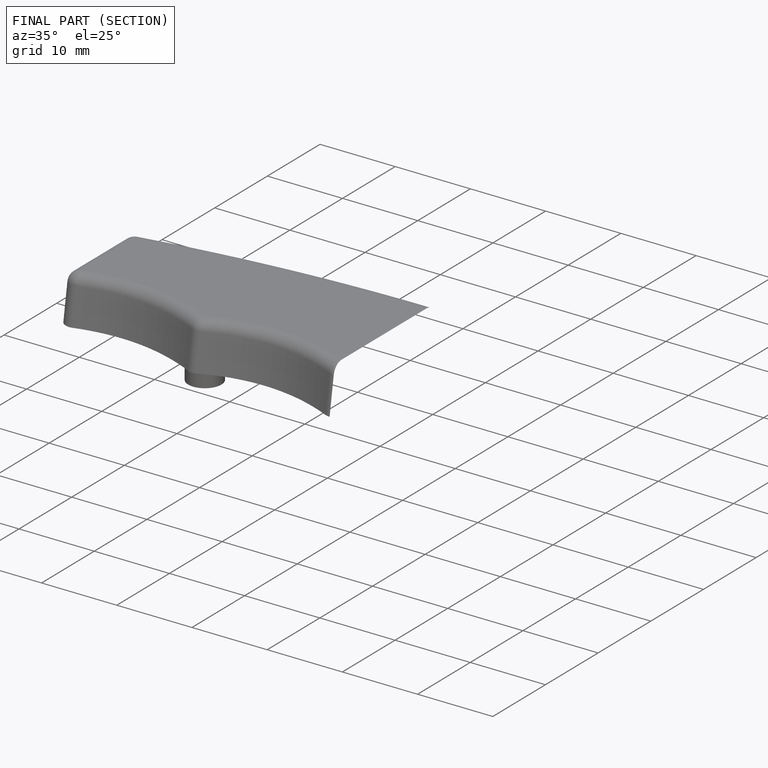
[diagram: finished part — half-section view (interior)]
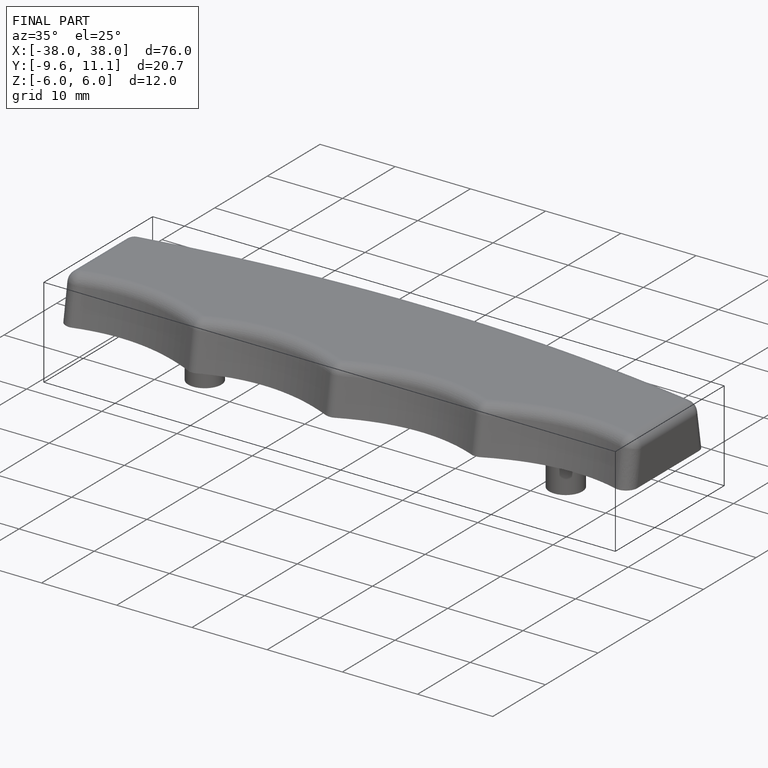
[diagram: finished part — iso view with bounding-box wireframe]
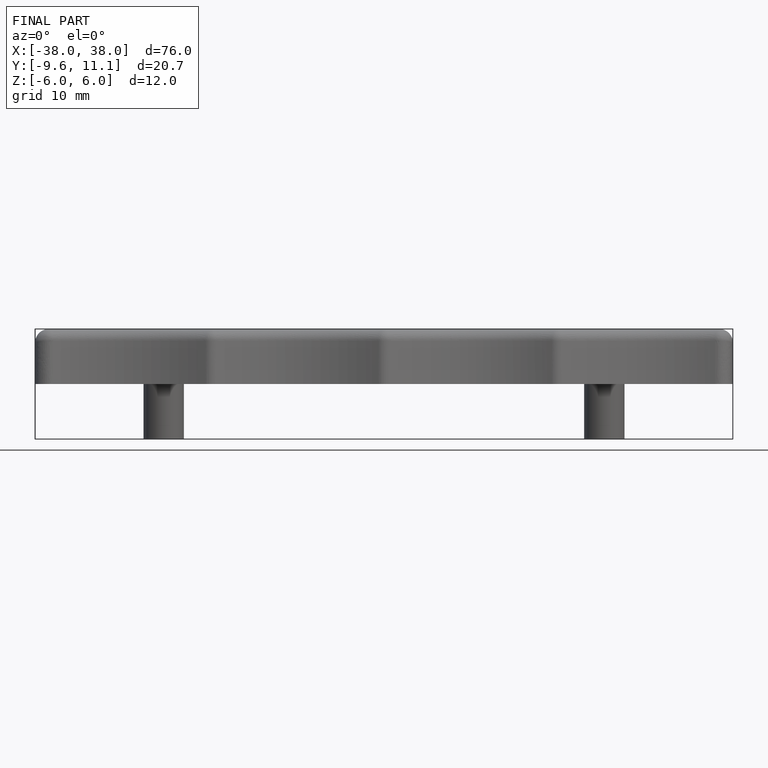
[diagram: finished part — front view with bounding-box wireframe]
